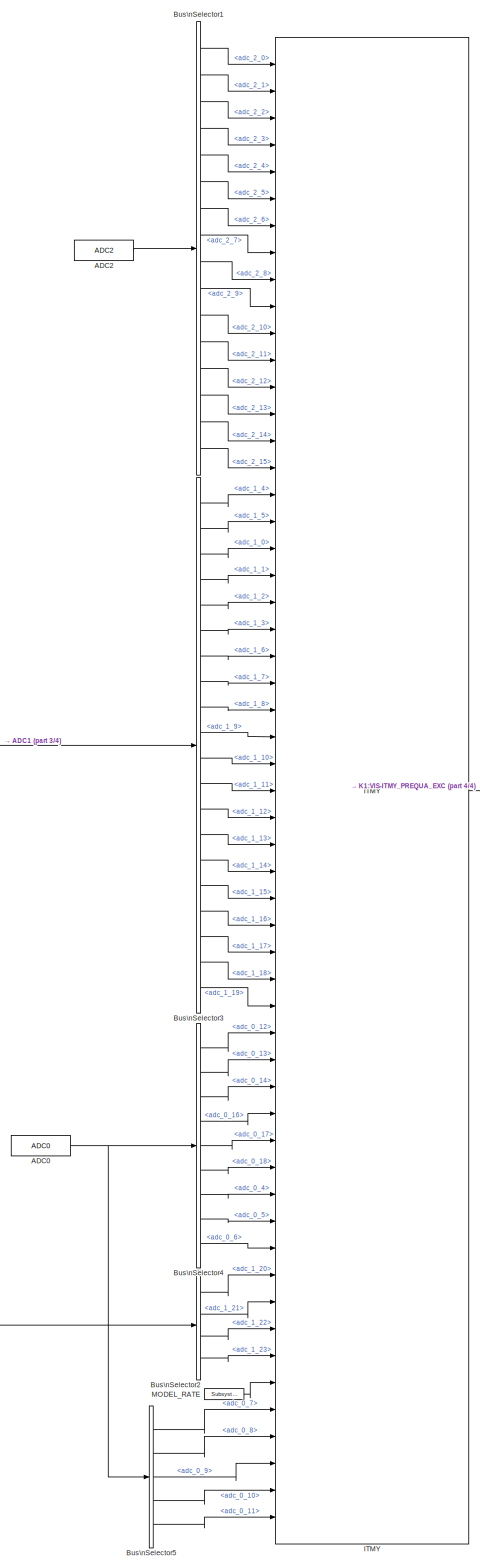
[diagram: root canvas - part 1/4, center side, full height]
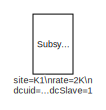
[diagram: root canvas - part 2/4, top left region]
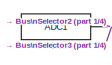
[diagram: root canvas - part 3/4, middle left region]
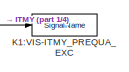
[diagram: root canvas - part 4/4, middle right region]
MODEL k1visitmymon
KIND model
BLOCK [Reference] ADC0  REF=cdsAdcx0/ADC0
  AttributesFormatString = %<Description>\\n%<Tag>
  Description = type-GSC_16AI64SSA\ncard_num=0
  Ports = [0, 1]
  SID = 815
  SourceBlock = cdsAdcx0/ADC0
  SourceType = SubSystem
  Tag = cdsAdc
BLOCK [Reference] ADC1  REF=cdsAdcx1/ADC1
  AttributesFormatString = %<Description>\\n%<Tag>
  Description = type-GSC_16AI64SSA\ncard_num=1
  Ports = [0, 1]
  SID = 816
  SourceBlock = cdsAdcx1/ADC1
  SourceType = SubSystem
  Tag = cdsAdc
BLOCK [Reference] ADC2  REF=cdsAdcx2/ADC2
  AttributesFormatString = %<Description>\\n%<Tag>
  Description = type-GSC_16AI64SSA\ncard_num=2
  Ports = [0, 1]
  SID = 715
  SourceBlock = cdsAdcx2/ADC2
  SourceType = SubSystem
  Tag = cdsAdc
BLOCK [BusSelector] Bus\nSelector1
  AttributesFormatString = %<Description>
  Description = ADC Selector
  OutputSignals = adc_2_0,adc_2_1,adc_2_2,adc_2_3,adc_2_4,adc_2_5,adc_2_6,adc_2_7,adc_2_8,adc_2_9,adc_2_10,adc_2_11,adc_2_12,adc_2_13,adc_2_14,adc_2_15
  Ports = [1, 16]
  SID = 682
BLOCK [BusSelector] Bus\nSelector2
  OutputSignals = adc_1_20,adc_1_21,adc_1_22,adc_1_23
  Ports = [1, 4]
  SID = 817
BLOCK [BusSelector] Bus\nSelector3
  OutputSignals = adc_1_4,adc_1_5,adc_1_0,adc_1_1,adc_1_2,adc_1_3,adc_1_6,adc_1_7,adc_1_8,adc_1_9,adc_1_10,adc_1_11,adc_1_12,adc_1_13,adc_1_14,adc_1_15,adc_1_16,adc_1_17,adc_1_18,adc_1_19
  Ports = [1, 20]
  SID = 818
BLOCK [BusSelector] Bus\nSelector4
  OutputSignals = adc_0_12,adc_0_13,adc_0_14,adc_0_16,adc_0_17,adc_0_18,adc_0_4,adc_0_5,adc_0_6
  Ports = [1, 9]
  SID = 819
BLOCK [BusSelector] Bus\nSelector5
  OutputSignals = adc_0_7,adc_0_8,adc_0_9,adc_0_10,adc_0_11
  Ports = [1, 5]
  SID = 1340
BLOCK [Reference] ITMY  REF=VISMON_MASTER/ITMY
  Ports = [55, 1]
  SID = 1469
  SourceBlock = VISMON_MASTER/ITMY
  SourceType = SubSystem
BLOCK [Reference] K1:VIS-ITMY_PREQUA_EXC  REF=cdsIPCx/SignalName
  AttributesFormatString = %<Tag>
  Description = Inter-Process Communication via Shared memory.
  Ports = [1, 2]
  SID = 814
  SourceBlock = cdsIPCx/SignalName
  SourceType = SubSystem
  Tag = cdsIPCx_SHMEM
BLOCK [Reference] MODEL_RATE  REF=cdsModelRate/Subsystem
  AttributesFormatString = %<Tag>
  Ports = [0, 1]
  SID = 749
  SourceBlock = cdsModelRate/Subsystem
  SourceType = SubSystem
  Tag = cdsModelRate
BLOCK [Reference] site=K1\nrate=2K\ndcuid=99\nhost=k1iy1\nspecific_cpu=4\nadcSlave=1  REF=cdsParameters/Subsystem
  AttributesFormatString = %<Tag>
  Description = Purpose:                                                                                                                                                                                                                                \nProvide system parameters to the FE code generator to properly configure the generated EPICS names, rep rate of the FE controller, and the Data Acquisition node ID fo...<+2934ch>
  Ports = []
  SID = 255
  SourceBlock = cdsParameters/Subsystem
  SourceType = SubSystem
  Tag = cdsParameters
NET ADC0:1 -> Bus\nSelector4:1, Bus\nSelector5:1
NET ADC1:1 -> Bus\nSelector2:1, Bus\nSelector3:1
LINE ADC2:1 -> Bus\nSelector1:1
LINE Bus\nSelector1:1 -> ITMY:1
LINE Bus\nSelector1:10 -> ITMY:10
LINE Bus\nSelector1:11 -> ITMY:11
LINE Bus\nSelector1:12 -> ITMY:12
LINE Bus\nSelector1:13 -> ITMY:13
LINE Bus\nSelector1:14 -> ITMY:14
LINE Bus\nSelector1:15 -> ITMY:15
LINE Bus\nSelector1:16 -> ITMY:16
LINE Bus\nSelector1:2 -> ITMY:2
LINE Bus\nSelector1:3 -> ITMY:3
LINE Bus\nSelector1:4 -> ITMY:4
LINE Bus\nSelector1:5 -> ITMY:5
LINE Bus\nSelector1:6 -> ITMY:6
LINE Bus\nSelector1:7 -> ITMY:7
LINE Bus\nSelector1:8 -> ITMY:8
LINE Bus\nSelector1:9 -> ITMY:9
LINE Bus\nSelector2:1 -> ITMY:46
LINE Bus\nSelector2:2 -> ITMY:47
LINE Bus\nSelector2:3 -> ITMY:48
LINE Bus\nSelector2:4 -> ITMY:49
LINE Bus\nSelector3:1 -> ITMY:17
LINE Bus\nSelector3:10 -> ITMY:26
LINE Bus\nSelector3:11 -> ITMY:27
LINE Bus\nSelector3:12 -> ITMY:28
LINE Bus\nSelector3:13 -> ITMY:29
LINE Bus\nSelector3:14 -> ITMY:30
LINE Bus\nSelector3:15 -> ITMY:31
LINE Bus\nSelector3:16 -> ITMY:32
LINE Bus\nSelector3:17 -> ITMY:33
LINE Bus\nSelector3:18 -> ITMY:34
LINE Bus\nSelector3:19 -> ITMY:35
LINE Bus\nSelector3:2 -> ITMY:18
LINE Bus\nSelector3:20 -> ITMY:36
LINE Bus\nSelector3:3 -> ITMY:19
LINE Bus\nSelector3:4 -> ITMY:20
LINE Bus\nSelector3:5 -> ITMY:21
LINE Bus\nSelector3:6 -> ITMY:22
LINE Bus\nSelector3:7 -> ITMY:23
LINE Bus\nSelector3:8 -> ITMY:24
LINE Bus\nSelector3:9 -> ITMY:25
LINE Bus\nSelector4:1 -> ITMY:37
LINE Bus\nSelector4:2 -> ITMY:38
LINE Bus\nSelector4:3 -> ITMY:39
LINE Bus\nSelector4:4 -> ITMY:40
LINE Bus\nSelector4:5 -> ITMY:41
LINE Bus\nSelector4:6 -> ITMY:42
LINE Bus\nSelector4:7 -> ITMY:43
LINE Bus\nSelector4:8 -> ITMY:44
LINE Bus\nSelector4:9 -> ITMY:45
LINE Bus\nSelector5:1 -> ITMY:51
LINE Bus\nSelector5:2 -> ITMY:52
LINE Bus\nSelector5:3 -> ITMY:53
LINE Bus\nSelector5:4 -> ITMY:54
LINE Bus\nSelector5:5 -> ITMY:55
LINE ITMY:1 -> K1:VIS-ITMY_PREQUA_EXC:1
LINE MODEL_RATE:1 -> ITMY:50
note: NET lines group one-source signal fan-out (src -> all destinations, sorted); 1:1 wires keep LINE
